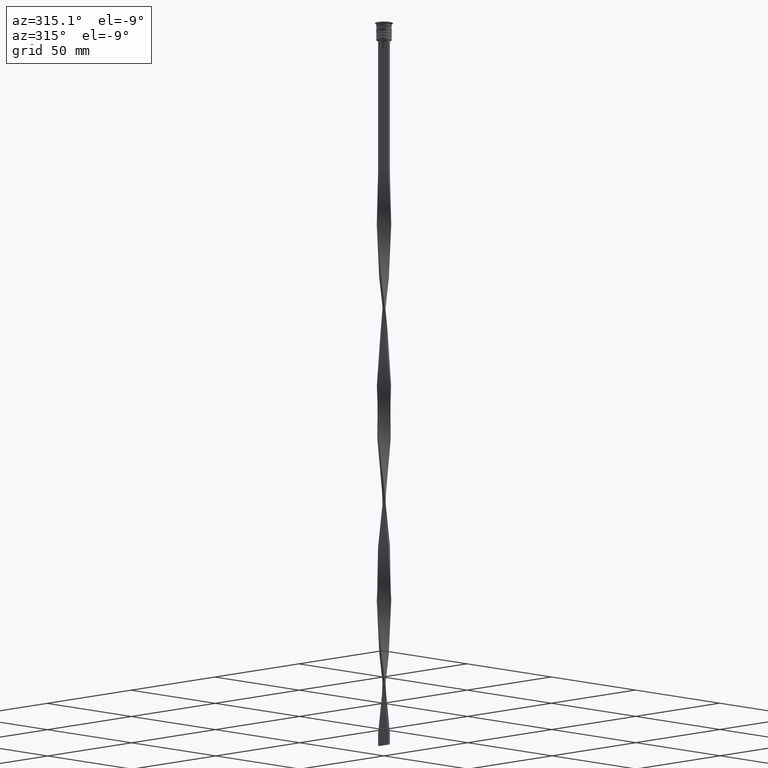
[diagram: clean part render]
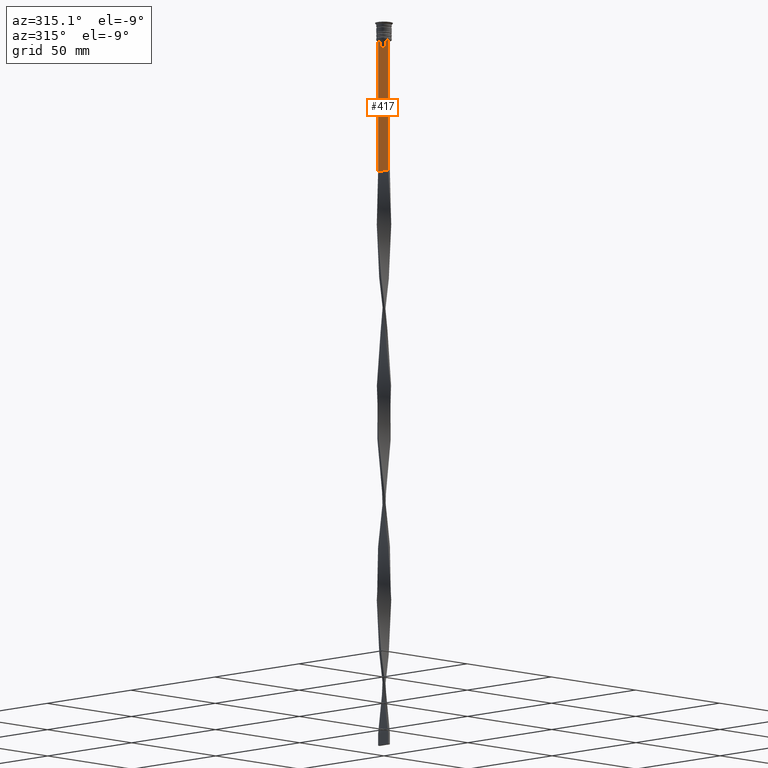
[diagram: same view with one face highlighted and labeled with its STEP entity id]
A machine part, auxiliary view. The second image highlights one B-rep face of the part: STEP entity #417.
In plain terms, the highlighted planar face has unit normal (-1, 0, 0).
Its self-contained STEP definition (entity closure, byte-faithful):
#3 = LINE ( 'NONE', #3842, #2967 ) ;
#39 = CARTESIAN_POINT ( 'NONE',  ( -0.5000000000000001110, -1.572418519351642230, -8.000000000000000000 ) ) ;
#43 = ORIENTED_EDGE ( 'NONE', *, *, #3415, .F. ) ;
#62 = CARTESIAN_POINT ( 'NONE',  ( -0.5000000000000001110, -2.091052366632653481, -7.500000000000000000 ) ) ;
#68 = DIRECTION ( 'NONE',  ( 0.000000000000000000, -1.000000000000000000, 0.000000000000000000 ) ) ;
#120 = VECTOR ( 'NONE', #68, 1000.000000000000000 ) ;
#182 = VECTOR ( 'NONE', #2236, 1000.000000000000000 ) ;
#184 = VERTEX_POINT ( 'NONE', #62 ) ;
#185 = DIRECTION ( 'NONE',  ( 0.000000000000000000, 0.000000000000000000, 1.000000000000000000 ) ) ;
#274 = CARTESIAN_POINT ( 'NONE',  ( -0.5000000000000001110, -3.000000000000000000, -63.00000000000000000 ) ) ;
#309 = AXIS2_PLACEMENT_3D ( 'NONE', #447, #1615, #185 ) ;
#369 = VERTEX_POINT ( 'NONE', #1997 ) ;
#395 = EDGE_CURVE ( 'NONE', #184, #677, #1953, .T. ) ;
#413 = CARTESIAN_POINT ( 'NONE',  ( -0.5000000000000001110, -1.918909712772151721, -7.667422931978337353 ) ) ;
#417 = ADVANCED_FACE ( 'NONE', ( #1905 ), #3104, .T. ) ;
#422 = ORIENTED_EDGE ( 'NONE', *, *, #1752, .F. ) ;
#447 = CARTESIAN_POINT ( 'NONE',  ( -0.5000000000000001110, -3.000000000000000000, -1.417237469701779329 ) ) ;
#472 = B_SPLINE_CURVE_WITH_KNOTS ( 'NONE', 3,
 ( #1803, #601, #1507, #2570 ),
 .UNSPECIFIED., .F., .F.,
 ( 4, 4 ),
 ( 0.003696428037903516997, 0.004416830248125220952 ),
 .UNSPECIFIED. ) ;
#488 = LINE ( 'NONE', #3785, #501 ) ;
#501 = VECTOR ( 'NONE', #1661, 1000.000000000000000 ) ;
#506 = VECTOR ( 'NONE', #1823, 1000.000000000000000 ) ;
#577 = LINE ( 'NONE', #3239, #942 ) ;
#601 = CARTESIAN_POINT ( 'NONE',  ( -0.5000000000000001110, 1.918907889994530658, -7.667424704779945976 ) ) ;
#677 = VERTEX_POINT ( 'NONE', #3380 ) ;
#857 = CARTESIAN_POINT ( 'NONE',  ( -0.5000000000000001110, -3.000000000000000000, -7.500000000000000000 ) ) ;
#901 = VERTEX_POINT ( 'NONE', #274 ) ;
#915 = LINE ( 'NONE', #1508, #506 ) ;
#918 = LINE ( 'NONE', #3588, #120 ) ;
#942 = VECTOR ( 'NONE', #1778, 1000.000000000000000 ) ;
#1112 = VERTEX_POINT ( 'NONE', #1311 ) ;
#1234 = ORIENTED_EDGE ( 'NONE', *, *, #2736, .F. ) ;
#1311 = CARTESIAN_POINT ( 'NONE',  ( -0.5000000000000001110, -1.572418519351642230, -10.49999999999999822 ) ) ;
#1327 = LINE ( 'NONE', #3724, #182 ) ;
#1339 = CARTESIAN_POINT ( 'NONE',  ( -0.5000000000000001110, -2.091052366632653481, -7.500000000000000000 ) ) ;
#1356 = ORIENTED_EDGE ( 'NONE', *, *, #2185, .F. ) ;
#1494 = ORIENTED_EDGE ( 'NONE', *, *, #1573, .T. ) ;
#1507 = CARTESIAN_POINT ( 'NONE',  ( -0.5000000000000001110, 1.746261636039132092, -7.834330826581080487 ) ) ;
#1508 = CARTESIAN_POINT ( 'NONE',  ( -0.5000000000000001110, -1.572418519351642230, 0.000000000000000000 ) ) ;
#1573 = EDGE_CURVE ( 'NONE', #3123, #3476, #577, .T. ) ;
#1601 = VECTOR ( 'NONE', #3660, 1000.000000000000000 ) ;
#1615 = DIRECTION ( 'NONE',  ( -1.000000000000000000, 0.000000000000000000, 0.000000000000000000 ) ) ;
#1661 = DIRECTION ( 'NONE',  ( 0.000000000000000000, 0.000000000000000000, -1.000000000000000000 ) ) ;
#1729 = EDGE_CURVE ( 'NONE', #901, #3476, #3, .T. ) ;
#1752 = EDGE_CURVE ( 'NONE', #3569, #3503, #472, .T. ) ;
#1778 = DIRECTION ( 'NONE',  ( 0.000000000000000000, 0.000000000000000000, -1.000000000000000000 ) ) ;
#1803 = CARTESIAN_POINT ( 'NONE',  ( -0.5000000000000001110, 2.091052366632653481, -7.500000000000000000 ) ) ;
#1823 = DIRECTION ( 'NONE',  ( -0.000000000000000000, -0.000000000000000000, 1.000000000000000000 ) ) ;
#1858 = ORIENTED_EDGE ( 'NONE', *, *, #3105, .F. ) ;
#1897 = CARTESIAN_POINT ( 'NONE',  ( -0.5000000000000001110, -1.746240429054158660, -7.834351036433149673 ) ) ;
#1905 = FACE_OUTER_BOUND ( 'NONE', #3493, .T. ) ;
#1953 = LINE ( 'NONE', #2889, #2349 ) ;
#1982 = VERTEX_POINT ( 'NONE', #39 ) ;
#1997 = CARTESIAN_POINT ( 'NONE',  ( -0.5000000000000001110, 1.572418519351642230, -10.49999999999999822 ) ) ;
#2113 = CARTESIAN_POINT ( 'NONE',  ( -0.5000000000000001110, 3.000000000000000000, -7.500000000000000000 ) ) ;
#2115 = ORIENTED_EDGE ( 'NONE', *, *, #395, .F. ) ;
#2185 = EDGE_CURVE ( 'NONE', #677, #901, #488, .T. ) ;
#2236 = DIRECTION ( 'NONE',  ( 0.000000000000000000, 0.000000000000000000, -1.000000000000000000 ) ) ;
#2271 = DIRECTION ( 'NONE',  ( 0.000000000000000000, -1.000000000000000000, 0.000000000000000000 ) ) ;
#2305 = EDGE_CURVE ( 'NONE', #3503, #369, #1327, .T. ) ;
#2349 = VECTOR ( 'NONE', #2271, 1000.000000000000000 ) ;
#2379 = CARTESIAN_POINT ( 'NONE',  ( -0.5000000000000001110, 3.000000000000000000, -63.00000000000000000 ) ) ;
#2516 = ORIENTED_EDGE ( 'NONE', *, *, #2305, .F. ) ;
#2551 = EDGE_CURVE ( 'NONE', #3123, #3569, #3505, .T. ) ;
#2570 = CARTESIAN_POINT ( 'NONE',  ( -0.5000000000000001110, 1.572418519351642230, -8.000000000000000000 ) ) ;
#2593 = CARTESIAN_POINT ( 'NONE',  ( -0.5000000000000001110, 1.572418519351642230, -8.000000000000000000 ) ) ;
#2694 = ORIENTED_EDGE ( 'NONE', *, *, #2551, .F. ) ;
#2736 = EDGE_CURVE ( 'NONE', #1982, #184, #2818, .T. ) ;
#2818 = B_SPLINE_CURVE_WITH_KNOTS ( 'NONE', 3,
 ( #3713, #1897, #413, #1339 ),
 .UNSPECIFIED., .F., .F.,
 ( 4, 4 ),
 ( 0.008356915209744724543, 0.009073319521387648162 ),
 .UNSPECIFIED. ) ;
#2889 = CARTESIAN_POINT ( 'NONE',  ( -0.5000000000000001110, -3.000000000000000000, -7.500000000000000000 ) ) ;
#2967 = VECTOR ( 'NONE', #3582, 1000.000000000000000 ) ;
#3068 = ORIENTED_EDGE ( 'NONE', *, *, #1729, .F. ) ;
#3104 = PLANE ( 'NONE',  #309 ) ;
#3105 = EDGE_CURVE ( 'NONE', #369, #1112, #918, .T. ) ;
#3123 = VERTEX_POINT ( 'NONE', #2113 ) ;
#3239 = CARTESIAN_POINT ( 'NONE',  ( -0.5000000000000001110, 3.000000000000000000, -1.417237469701779329 ) ) ;
#3380 = CARTESIAN_POINT ( 'NONE',  ( -0.5000000000000001110, -3.000000000000000000, -7.500000000000000000 ) ) ;
#3415 = EDGE_CURVE ( 'NONE', #1112, #1982, #915, .T. ) ;
#3476 = VERTEX_POINT ( 'NONE', #2379 ) ;
#3493 = EDGE_LOOP ( 'NONE', ( #422, #2694, #1494, #3068, #1356, #2115, #1234, #43, #1858, #2516 ) ) ;
#3503 = VERTEX_POINT ( 'NONE', #2593 ) ;
#3505 = LINE ( 'NONE', #857, #1601 ) ;
#3569 = VERTEX_POINT ( 'NONE', #3740 ) ;
#3582 = DIRECTION ( 'NONE',  ( 0.000000000000000000, 1.000000000000000000, 0.000000000000000000 ) ) ;
#3588 = CARTESIAN_POINT ( 'NONE',  ( -0.5000000000000001110, 1.650000000000003464, -10.49999999999999822 ) ) ;
#3660 = DIRECTION ( 'NONE',  ( 0.000000000000000000, -1.000000000000000000, 0.000000000000000000 ) ) ;
#3713 = CARTESIAN_POINT ( 'NONE',  ( -0.5000000000000001110, -1.572418519351642230, -8.000000000000000000 ) ) ;
#3724 = CARTESIAN_POINT ( 'NONE',  ( -0.5000000000000001110, 1.572418519351642230, 0.000000000000000000 ) ) ;
#3740 = CARTESIAN_POINT ( 'NONE',  ( -0.5000000000000001110, 2.091052366632653481, -7.500000000000000000 ) ) ;
#3785 = CARTESIAN_POINT ( 'NONE',  ( -0.5000000000000001110, -3.000000000000000000, -1.417237469701779329 ) ) ;
#3842 = CARTESIAN_POINT ( 'NONE',  ( -0.5000000000000001110, -3.000000000000000000, -63.00000000000000000 ) ) ;